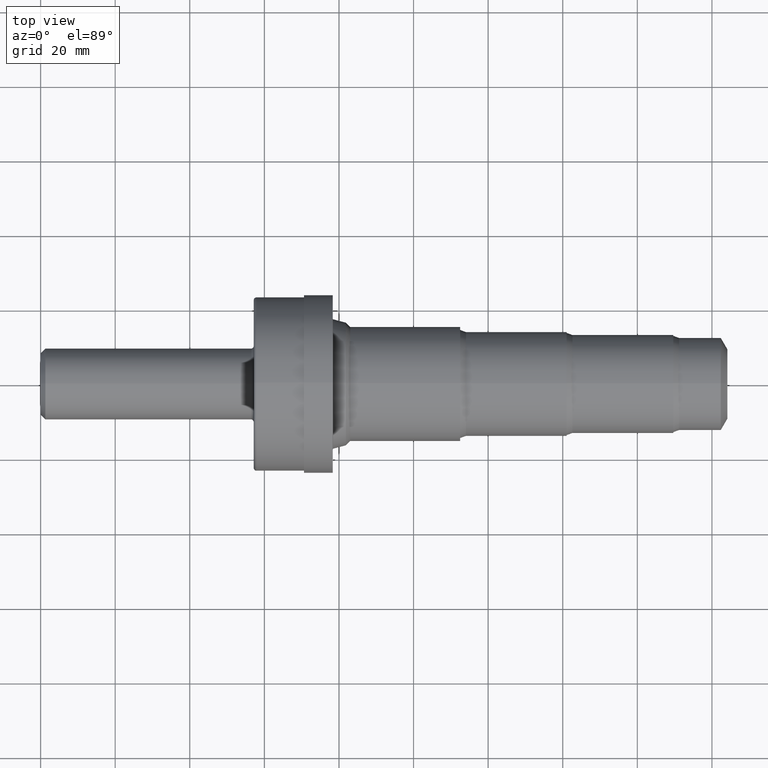
[diagram: clean part render]
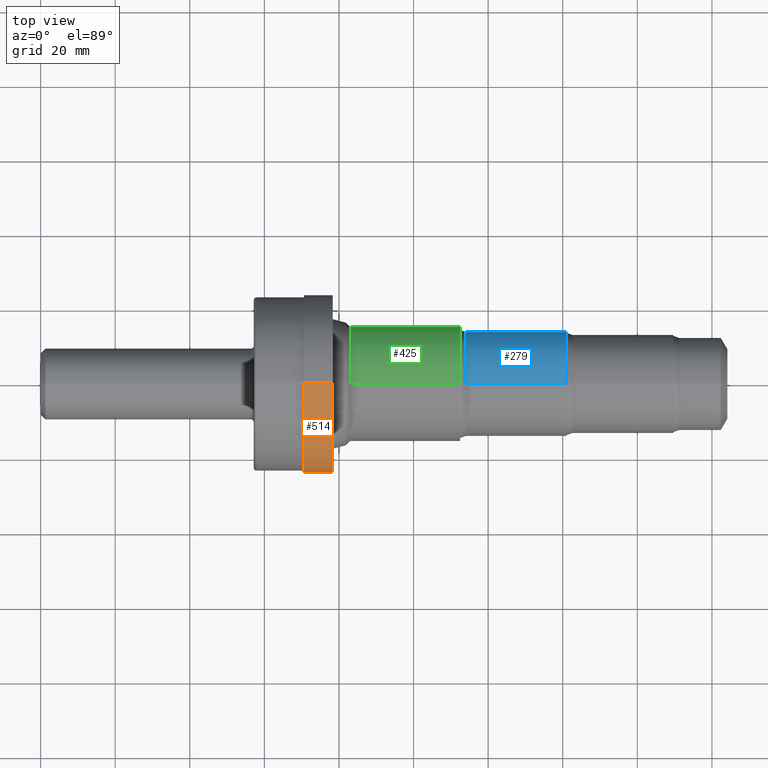
[diagram: same view with three faces highlighted in distinct colors, each labeled with its STEP entity id]
A machine part, top view with three faces highlighted in distinct colors.
Their STEP definitions:

[orange] entity #514 — the highlighted cylindrical surface (partial cylindrical patch) has radius 23.9395 mm, axis along (-1, -0, -0).
#1 = CARTESIAN_POINT ( 'NONE',  ( 3.084000000000000075, 0.0000000000000000000, 0.0000000000000000000 ) ) ;
#11 = DIRECTION ( 'NONE',  ( -1.000000000000000000, -0.0000000000000000000, -0.0000000000000000000 ) ) ;
#13 = DIRECTION ( 'NONE',  ( -1.000000000000000000, -0.0000000000000000000, -0.0000000000000000000 ) ) ;
#50 = VERTEX_POINT ( 'NONE', #597 ) ;
#63 = EDGE_CURVE ( 'NONE', #284, #558, #1086, .T. ) ;
#65 = DIRECTION ( 'NONE',  ( -1.000000000000000000, -0.0000000000000000000, -0.0000000000000000000 ) ) ;
#97 = CYLINDRICAL_SURFACE ( 'NONE', #383, 0.9425000000000000044 ) ;
#104 = ORIENTED_EDGE ( 'NONE', *, *, #770, .F. ) ;
#108 = ORIENTED_EDGE ( 'NONE', *, *, #63, .T. ) ;
#122 = FACE_OUTER_BOUND ( 'NONE', #787, .T. ) ;
#145 = DIRECTION ( 'NONE',  ( 0.0000000000000000000, 0.0000000000000000000, 1.000000000000000000 ) ) ;
#207 = VECTOR ( 'NONE', #894, 39.37007874015748143 ) ;
#282 = CARTESIAN_POINT ( 'NONE',  ( 2.781000000000000139, 0.0000000000000000000, 0.9425000000000000044 ) ) ;
#284 = VERTEX_POINT ( 'NONE', #594 ) ;
#323 = CARTESIAN_POINT ( 'NONE',  ( 2.781000000000000139, 0.0000000000000000000, 0.0000000000000000000 ) ) ;
#348 = ORIENTED_EDGE ( 'NONE', *, *, #1049, .T. ) ;
#370 = AXIS2_PLACEMENT_3D ( 'NONE', #323, #617, #427 ) ;
#383 = AXIS2_PLACEMENT_3D ( 'NONE', #446, #13, #1001 ) ;
#427 = DIRECTION ( 'NONE',  ( 0.0000000000000000000, 0.0000000000000000000, 1.000000000000000000 ) ) ;
#446 = CARTESIAN_POINT ( 'NONE',  ( 0.0000000000000000000, 0.0000000000000000000, 0.0000000000000000000 ) ) ;
#514 = ADVANCED_FACE ( 'NONE', ( #122 ), #97, .T. ) ;
#519 = ORIENTED_EDGE ( 'NONE', *, *, #893, .F. ) ;
#558 = VERTEX_POINT ( 'NONE', #282 ) ;
#594 = CARTESIAN_POINT ( 'NONE',  ( 3.084000000000000075, 0.0000000000000000000, 0.9425000000000000044 ) ) ;
#597 = CARTESIAN_POINT ( 'NONE',  ( 3.084000000000000075, 1.154229608196380369E-16, -0.9425000000000000044 ) ) ;
#617 = DIRECTION ( 'NONE',  ( -1.000000000000000000, -0.0000000000000000000, -0.0000000000000000000 ) ) ;
#678 = VECTOR ( 'NONE', #65, 39.37007874015748143 ) ;
#742 = AXIS2_PLACEMENT_3D ( 'NONE', #1, #11, #145 ) ;
#751 = VERTEX_POINT ( 'NONE', #1113 ) ;
#770 = EDGE_CURVE ( 'NONE', #50, #751, #897, .T. ) ;
#787 = EDGE_LOOP ( 'NONE', ( #104, #348, #108, #519 ) ) ;
#818 = CIRCLE ( 'NONE', #742, 0.9425000000000000044 ) ;
#845 = CIRCLE ( 'NONE', #370, 0.9425000000000000044 ) ;
#893 = EDGE_CURVE ( 'NONE', #751, #558, #845, .T. ) ;
#894 = DIRECTION ( 'NONE',  ( -1.000000000000000000, -0.0000000000000000000, -0.0000000000000000000 ) ) ;
#897 = LINE ( 'NONE', #1047, #678 ) ;
#1001 = DIRECTION ( 'NONE',  ( 0.0000000000000000000, 0.0000000000000000000, 1.000000000000000000 ) ) ;
#1014 = CARTESIAN_POINT ( 'NONE',  ( 0.0000000000000000000, 0.0000000000000000000, 0.9425000000000000044 ) ) ;
#1047 = CARTESIAN_POINT ( 'NONE',  ( 0.0000000000000000000, 1.154229608196380369E-16, -0.9425000000000000044 ) ) ;
#1049 = EDGE_CURVE ( 'NONE', #50, #284, #818, .T. ) ;
#1086 = LINE ( 'NONE', #1014, #207 ) ;
#1113 = CARTESIAN_POINT ( 'NONE',  ( 2.781000000000000139, 1.154229608196380369E-16, -0.9425000000000000044 ) ) ;

[blue] entity #279 — the highlighted cylindrical surface (partial cylindrical patch) has radius 13.9929 mm, axis along (-1, -0, -0).
#8 = VERTEX_POINT ( 'NONE', #54 ) ;
#46 = EDGE_CURVE ( 'NONE', #563, #744, #494, .T. ) ;
#54 = CARTESIAN_POINT ( 'NONE',  ( 4.490000000000000213, 0.0000000000000000000, 0.5509000000000000563 ) ) ;
#57 = EDGE_LOOP ( 'NONE', ( #531, #763, #985, #67 ) ) ;
#67 = ORIENTED_EDGE ( 'NONE', *, *, #368, .F. ) ;
#116 = CARTESIAN_POINT ( 'NONE',  ( 0.0000000000000000000, 0.0000000000000000000, 0.0000000000000000000 ) ) ;
#147 = AXIS2_PLACEMENT_3D ( 'NONE', #304, #1020, #984 ) ;
#162 = CARTESIAN_POINT ( 'NONE',  ( 5.553000000000000824, 6.746579216502770273E-17, -0.5509000000000000563 ) ) ;
#270 = CIRCLE ( 'NONE', #734, 0.5509000000000000563 ) ;
#279 = ADVANCED_FACE ( 'NONE', ( #390 ), #1107, .T. ) ;
#302 = DIRECTION ( 'NONE',  ( -1.000000000000000000, -0.0000000000000000000, -0.0000000000000000000 ) ) ;
#304 = CARTESIAN_POINT ( 'NONE',  ( 5.553000000000000824, 0.0000000000000000000, 0.0000000000000000000 ) ) ;
#346 = DIRECTION ( 'NONE',  ( 0.0000000000000000000, 0.0000000000000000000, 1.000000000000000000 ) ) ;
#368 = EDGE_CURVE ( 'NONE', #563, #8, #899, .T. ) ;
#373 = CARTESIAN_POINT ( 'NONE',  ( 5.553000000000000824, 0.0000000000000000000, 0.5509000000000000563 ) ) ;
#384 = DIRECTION ( 'NONE',  ( -1.000000000000000000, -0.0000000000000000000, -0.0000000000000000000 ) ) ;
#390 = FACE_OUTER_BOUND ( 'NONE', #57, .T. ) ;
#431 = AXIS2_PLACEMENT_3D ( 'NONE', #116, #384, #480 ) ;
#480 = DIRECTION ( 'NONE',  ( 0.0000000000000000000, 0.0000000000000000000, 1.000000000000000000 ) ) ;
#494 = CIRCLE ( 'NONE', #147, 0.5509000000000000563 ) ;
#531 = ORIENTED_EDGE ( 'NONE', *, *, #46, .T. ) ;
#563 = VERTEX_POINT ( 'NONE', #373 ) ;
#607 = CARTESIAN_POINT ( 'NONE',  ( 0.0000000000000000000, 6.746579216502770273E-17, -0.5509000000000000563 ) ) ;
#655 = EDGE_CURVE ( 'NONE', #8, #970, #270, .T. ) ;
#681 = VECTOR ( 'NONE', #849, 39.37007874015748143 ) ;
#686 = CARTESIAN_POINT ( 'NONE',  ( 4.490000000000000213, 0.0000000000000000000, 0.0000000000000000000 ) ) ;
#734 = AXIS2_PLACEMENT_3D ( 'NONE', #686, #302, #346 ) ;
#744 = VERTEX_POINT ( 'NONE', #162 ) ;
#763 = ORIENTED_EDGE ( 'NONE', *, *, #817, .T. ) ;
#817 = EDGE_CURVE ( 'NONE', #744, #970, #870, .T. ) ;
#849 = DIRECTION ( 'NONE',  ( -1.000000000000000000, -0.0000000000000000000, -0.0000000000000000000 ) ) ;
#870 = LINE ( 'NONE', #607, #1065 ) ;
#899 = LINE ( 'NONE', #1031, #681 ) ;
#940 = CARTESIAN_POINT ( 'NONE',  ( 4.490000000000000213, 6.746579216502770273E-17, -0.5509000000000000563 ) ) ;
#970 = VERTEX_POINT ( 'NONE', #940 ) ;
#984 = DIRECTION ( 'NONE',  ( 0.0000000000000000000, 0.0000000000000000000, 1.000000000000000000 ) ) ;
#985 = ORIENTED_EDGE ( 'NONE', *, *, #655, .F. ) ;
#1020 = DIRECTION ( 'NONE',  ( -1.000000000000000000, -0.0000000000000000000, -0.0000000000000000000 ) ) ;
#1031 = CARTESIAN_POINT ( 'NONE',  ( 0.0000000000000000000, 0.0000000000000000000, 0.5509000000000000563 ) ) ;
#1065 = VECTOR ( 'NONE', #1098, 39.37007874015748143 ) ;
#1098 = DIRECTION ( 'NONE',  ( -1.000000000000000000, -0.0000000000000000000, -0.0000000000000000000 ) ) ;
#1107 = CYLINDRICAL_SURFACE ( 'NONE', #431, 0.5509000000000000563 ) ;

[green] entity #425 — the highlighted cylindrical surface (partial cylindrical patch) has radius 15.3543 mm, axis along (-1, -0, -0).
#56 = VERTEX_POINT ( 'NONE', #990 ) ;
#72 = DIRECTION ( 'NONE',  ( -1.000000000000000000, -0.0000000000000000000, -0.0000000000000000000 ) ) ;
#76 = CARTESIAN_POINT ( 'NONE',  ( 4.428000000000000824, 0.0000000000000000000, 0.0000000000000000000 ) ) ;
#84 = EDGE_LOOP ( 'NONE', ( #895, #1118, #212, #929 ) ) ;
#100 = EDGE_CURVE ( 'NONE', #56, #1134, #953, .T. ) ;
#153 = CARTESIAN_POINT ( 'NONE',  ( 0.0000000000000000000, 7.402989900845750385E-17, -0.6045000000000000373 ) ) ;
#179 = AXIS2_PLACEMENT_3D ( 'NONE', #496, #1000, #216 ) ;
#212 = ORIENTED_EDGE ( 'NONE', *, *, #546, .F. ) ;
#216 = DIRECTION ( 'NONE',  ( 0.0000000000000000000, 0.0000000000000000000, 1.000000000000000000 ) ) ;
#288 = CARTESIAN_POINT ( 'NONE',  ( 4.428000000000000824, 7.402989900845750385E-17, -0.6045000000000000373 ) ) ;
#309 = DIRECTION ( 'NONE',  ( -1.000000000000000000, -0.0000000000000000000, -0.0000000000000000000 ) ) ;
#360 = AXIS2_PLACEMENT_3D ( 'NONE', #382, #557, #568 ) ;
#382 = CARTESIAN_POINT ( 'NONE',  ( 3.268273011444505105, 0.0000000000000000000, 0.0000000000000000000 ) ) ;
#425 = ADVANCED_FACE ( 'NONE', ( #801 ), #976, .T. ) ;
#430 = DIRECTION ( 'NONE',  ( 0.0000000000000000000, 0.0000000000000000000, 1.000000000000000000 ) ) ;
#460 = VECTOR ( 'NONE', #309, 39.37007874015748143 ) ;
#473 = DIRECTION ( 'NONE',  ( -1.000000000000000000, -0.0000000000000000000, -0.0000000000000000000 ) ) ;
#482 = CIRCLE ( 'NONE', #883, 0.6045000000000000373 ) ;
#496 = CARTESIAN_POINT ( 'NONE',  ( 0.0000000000000000000, 0.0000000000000000000, 0.0000000000000000000 ) ) ;
#541 = VERTEX_POINT ( 'NONE', #288 ) ;
#546 = EDGE_CURVE ( 'NONE', #1134, #1129, #1056, .T. ) ;
#557 = DIRECTION ( 'NONE',  ( -1.000000000000000000, -0.0000000000000000000, -0.0000000000000000000 ) ) ;
#568 = DIRECTION ( 'NONE',  ( 0.0000000000000000000, 0.0000000000000000000, 1.000000000000000000 ) ) ;
#576 = CARTESIAN_POINT ( 'NONE',  ( 3.268273011444505105, 7.402989900845750385E-17, -0.6045000000000000373 ) ) ;
#690 = EDGE_CURVE ( 'NONE', #541, #1129, #930, .T. ) ;
#707 = VECTOR ( 'NONE', #72, 39.37007874015748143 ) ;
#801 = FACE_OUTER_BOUND ( 'NONE', #84, .T. ) ;
#877 = CARTESIAN_POINT ( 'NONE',  ( 3.268273011444505105, 0.0000000000000000000, 0.6045000000000000373 ) ) ;
#883 = AXIS2_PLACEMENT_3D ( 'NONE', #76, #473, #430 ) ;
#895 = ORIENTED_EDGE ( 'NONE', *, *, #1131, .T. ) ;
#929 = ORIENTED_EDGE ( 'NONE', *, *, #100, .F. ) ;
#930 = LINE ( 'NONE', #153, #707 ) ;
#953 = LINE ( 'NONE', #1096, #460 ) ;
#976 = CYLINDRICAL_SURFACE ( 'NONE', #179, 0.6045000000000000373 ) ;
#990 = CARTESIAN_POINT ( 'NONE',  ( 4.428000000000000824, 0.0000000000000000000, 0.6045000000000000373 ) ) ;
#1000 = DIRECTION ( 'NONE',  ( -1.000000000000000000, -0.0000000000000000000, -0.0000000000000000000 ) ) ;
#1056 = CIRCLE ( 'NONE', #360, 0.6045000000000000373 ) ;
#1096 = CARTESIAN_POINT ( 'NONE',  ( 0.0000000000000000000, 0.0000000000000000000, 0.6045000000000000373 ) ) ;
#1118 = ORIENTED_EDGE ( 'NONE', *, *, #690, .T. ) ;
#1129 = VERTEX_POINT ( 'NONE', #576 ) ;
#1131 = EDGE_CURVE ( 'NONE', #56, #541, #482, .T. ) ;
#1134 = VERTEX_POINT ( 'NONE', #877 ) ;